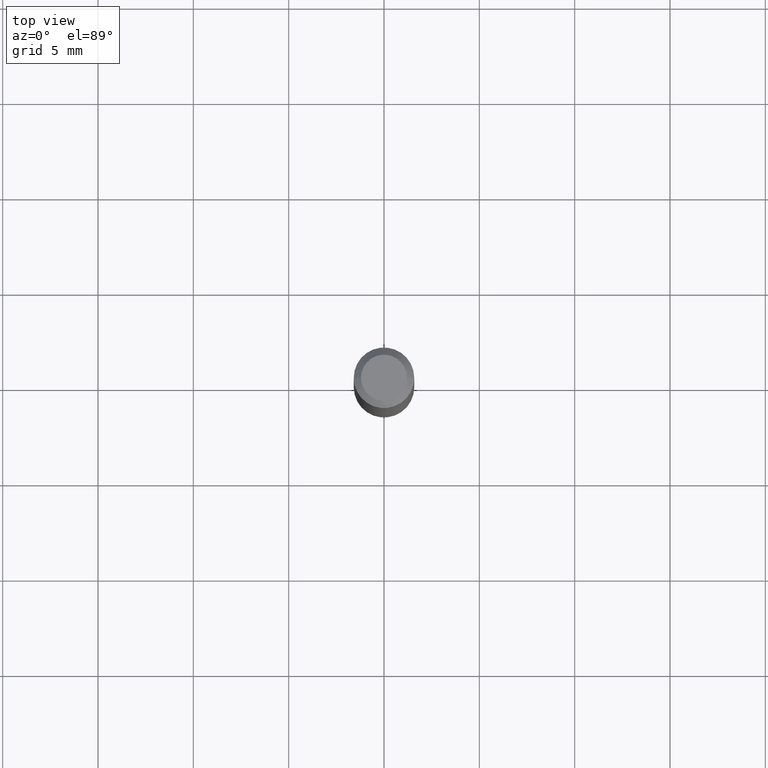
[diagram: clean part render]
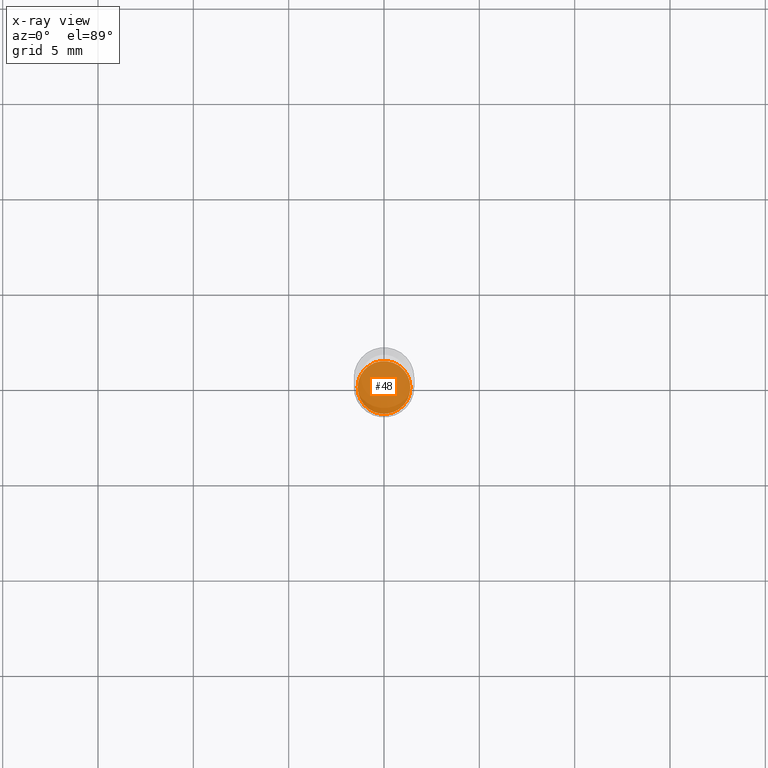
[diagram: x-ray — body ghosted, one internal face saturated and labeled with its STEP entity id]
A machine part, top view, then the same camera in x-ray: the body is ghosted and one INTERNAL B-rep face — a face not visible from any outside direction — is saturated and labeled: STEP entity #48.
In plain terms, the highlighted planar face has unit normal (-0, 0, 1).
Its self-contained STEP definition (entity closure, byte-faithful):
#44 = FACE_OUTER_BOUND ( 'NONE', #61, .T. ) ;
#48 = ADVANCED_FACE ( 'NONE', ( #44 ), #163, .F. ) ;
#61 = EDGE_LOOP ( 'NONE', ( #429, #407 ) ) ;
#91 = CARTESIAN_POINT ( 'NONE',  ( 0.05450000000000002065, -4.465604632380382045E-15, -1.170000000000000151 ) ) ;
#120 = DIRECTION ( 'NONE',  ( 1.000000000000000000, -6.982962677686265922E-15, 4.876176775795935793E-29 ) ) ;
#122 = AXIS2_PLACEMENT_3D ( 'NONE', #252, #247, #256 ) ;
#125 = AXIS2_PLACEMENT_3D ( 'NONE', #166, #246, #120 ) ;
#163 = PLANE ( 'NONE',  #125 ) ;
#166 = CARTESIAN_POINT ( 'NONE',  ( 2.861198503236610065E-29, -4.085033166446480067E-15, -1.170000000000000151 ) ) ;
#194 = CARTESIAN_POINT ( 'NONE',  ( 2.861198503236610065E-29, -4.085033166446480067E-15, -1.170000000000000151 ) ) ;
#204 = EDGE_CURVE ( 'NONE', #315, #304, #404, .T. ) ;
#246 = DIRECTION ( 'NONE',  ( -2.438088387897960049E-29, 3.491481338843145188E-15, 1.000000000000000000 ) ) ;
#247 = DIRECTION ( 'NONE',  ( -2.445468806185136597E-29, 3.491481338843145583E-15, 1.000000000000000000 ) ) ;
#252 = CARTESIAN_POINT ( 'NONE',  ( 2.861198503236610065E-29, -4.085033166446480067E-15, -1.170000000000000151 ) ) ;
#256 = DIRECTION ( 'NONE',  ( 1.000000000000000000, -6.982962677686267499E-15, 0.000000000000000000 ) ) ;
#304 = VERTEX_POINT ( 'NONE', #492 ) ;
#315 = VERTEX_POINT ( 'NONE', #91 ) ;
#326 = EDGE_CURVE ( 'NONE', #304, #315, #456, .T. ) ;
#330 = AXIS2_PLACEMENT_3D ( 'NONE', #194, #394, #476 ) ;
#394 = DIRECTION ( 'NONE',  ( -2.445468806185136597E-29, 3.491481338843145583E-15, 1.000000000000000000 ) ) ;
#404 = CIRCLE ( 'NONE', #330, 0.05450000000000002065 ) ;
#407 = ORIENTED_EDGE ( 'NONE', *, *, #326, .F. ) ;
#429 = ORIENTED_EDGE ( 'NONE', *, *, #204, .F. ) ;
#456 = CIRCLE ( 'NONE', #122, 0.05450000000000002065 ) ;
#476 = DIRECTION ( 'NONE',  ( 1.000000000000000000, -6.982962677686267499E-15, 0.000000000000000000 ) ) ;
#492 = CARTESIAN_POINT ( 'NONE',  ( -0.05450000000000002065, -3.695138148283115104E-15, -1.170000000000000151 ) ) ;